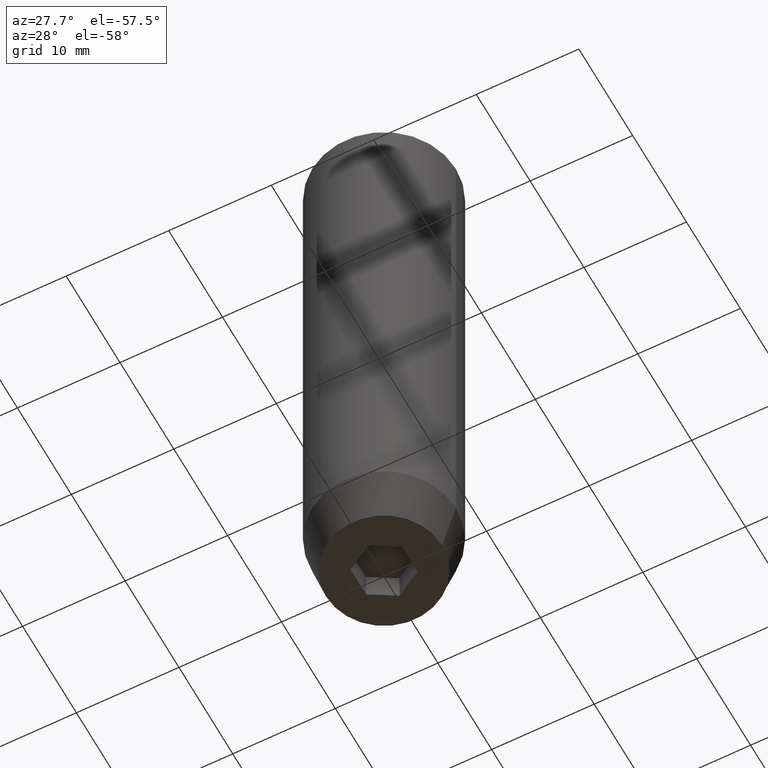
[diagram: clean part render]
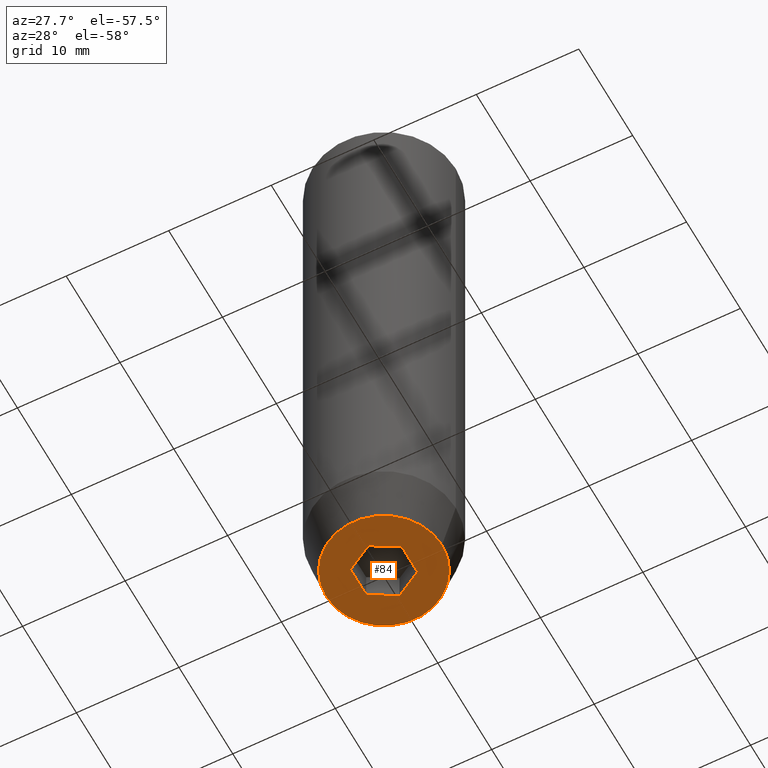
[diagram: same view with one face highlighted and labeled with its STEP entity id]
A machine part, auxiliary view. The second image highlights one B-rep face of the part: STEP entity #84.
In plain terms, the highlighted planar face has unit normal (0, 0, -1).
Its self-contained STEP definition (entity closure, byte-faithful):
#16 = CARTESIAN_POINT ( 'NONE',  ( -1.250000000000000444, 2.165063509461097269, -60.00000000000000000 ) ) ;
#18 = ORIENTED_EDGE ( 'NONE', *, *, #462, .F. ) ;
#19 = LINE ( 'NONE', #371, #494 ) ;
#44 = VERTEX_POINT ( 'NONE', #157 ) ;
#53 = ORIENTED_EDGE ( 'NONE', *, *, #433, .F. ) ;
#68 = CARTESIAN_POINT ( 'NONE',  ( 0.000000000000000000, 0.000000000000000000, -60.00000000000000000 ) ) ;
#75 = LINE ( 'NONE', #528, #442 ) ;
#84 = ADVANCED_FACE ( 'NONE', ( #430, #170 ), #269, .T. ) ;
#100 = VECTOR ( 'NONE', #198, 1000.000000000000000 ) ;
#127 = CARTESIAN_POINT ( 'NONE',  ( 0.000000000000000000, -2.886751345948128211, -60.00000000000000000 ) ) ;
#137 = ORIENTED_EDGE ( 'NONE', *, *, #187, .F. ) ;
#157 = CARTESIAN_POINT ( 'NONE',  ( 2.500000000000000000, -1.443375672974064106, -60.00000000000000000 ) ) ;
#170 = FACE_OUTER_BOUND ( 'NONE', #537, .T. ) ;
#172 = DIRECTION ( 'NONE',  ( -0.000000000000000000, -0.000000000000000000, 1.000000000000000000 ) ) ;
#173 = VERTEX_POINT ( 'NONE', #258 ) ;
#187 = EDGE_CURVE ( 'NONE', #193, #44, #75, .T. ) ;
#193 = VERTEX_POINT ( 'NONE', #222 ) ;
#198 = DIRECTION ( 'NONE',  ( 0.8660254037844385966, 0.5000000000000001110, 0.000000000000000000 ) ) ;
#203 = CARTESIAN_POINT ( 'NONE',  ( -2.500000000000000444, 0.000000000000000000, -60.00000000000000000 ) ) ;
#207 = CARTESIAN_POINT ( 'NONE',  ( -2.500000000000000444, -1.443375672974064328, -60.00000000000000000 ) ) ;
#219 = LINE ( 'NONE', #431, #585 ) ;
#222 = CARTESIAN_POINT ( 'NONE',  ( 2.500000000000000000, 1.443375672974064328, -60.00000000000000000 ) ) ;
#240 = AXIS2_PLACEMENT_3D ( 'NONE', #68, #309, #396 ) ;
#250 = CIRCLE ( 'NONE', #580, 5.660254037844384634 ) ;
#254 = EDGE_CURVE ( 'NONE', #173, #382, #512, .T. ) ;
#258 = CARTESIAN_POINT ( 'NONE',  ( -2.500000000000000444, 1.443375672974064772, -60.00000000000000000 ) ) ;
#259 = LINE ( 'NONE', #203, #504 ) ;
#262 = DIRECTION ( 'NONE',  ( 0.000000000000000000, -1.000000000000000000, 0.000000000000000000 ) ) ;
#269 = PLANE ( 'NONE',  #525 ) ;
#282 = VERTEX_POINT ( 'NONE', #332 ) ;
#289 = EDGE_CURVE ( 'NONE', #44, #548, #19, .T. ) ;
#296 = DIRECTION ( 'NONE',  ( -0.8660254037844387076, -0.5000000000000001110, 0.000000000000000000 ) ) ;
#309 = DIRECTION ( 'NONE',  ( -0.000000000000000000, -0.000000000000000000, 1.000000000000000000 ) ) ;
#320 = ORIENTED_EDGE ( 'NONE', *, *, #415, .F. ) ;
#326 = ORIENTED_EDGE ( 'NONE', *, *, #289, .F. ) ;
#332 = CARTESIAN_POINT ( 'NONE',  ( 5.660254037844384634, 0.000000000000000000, -60.00000000000000000 ) ) ;
#354 = DIRECTION ( 'NONE',  ( 1.000000000000000000, 0.000000000000000000, 0.000000000000000000 ) ) ;
#365 = VERTEX_POINT ( 'NONE', #420 ) ;
#371 = CARTESIAN_POINT ( 'NONE',  ( 1.249999999999999778, -2.165063509461096380, -60.00000000000000000 ) ) ;
#382 = VERTEX_POINT ( 'NONE', #457 ) ;
#396 = DIRECTION ( 'NONE',  ( 1.000000000000000000, 0.000000000000000000, 0.000000000000000000 ) ) ;
#399 = DIRECTION ( 'NONE',  ( -0.8660254037844387076, 0.4999999999999998890, 0.000000000000000000 ) ) ;
#407 = ORIENTED_EDGE ( 'NONE', *, *, #543, .F. ) ;
#410 = EDGE_LOOP ( 'NONE', ( #558, #53, #18, #326, #137, #320 ) ) ;
#415 = EDGE_CURVE ( 'NONE', #382, #193, #524, .T. ) ;
#420 = CARTESIAN_POINT ( 'NONE',  ( -5.660254037844384634, 7.752169791919240742E-16, -60.00000000000000000 ) ) ;
#430 = FACE_BOUND ( 'NONE', #410, .T. ) ;
#431 = CARTESIAN_POINT ( 'NONE',  ( -1.249999999999999556, -2.165063509461096825, -60.00000000000000000 ) ) ;
#433 = EDGE_CURVE ( 'NONE', #455, #173, #259, .T. ) ;
#436 = CARTESIAN_POINT ( 'NONE',  ( 0.000000000000000000, 5.660254037844384634, -60.00000000000000000 ) ) ;
#439 = CARTESIAN_POINT ( 'NONE',  ( 1.250000000000000222, 2.165063509461096825, -60.00000000000000000 ) ) ;
#442 = VECTOR ( 'NONE', #262, 1000.000000000000000 ) ;
#450 = CIRCLE ( 'NONE', #240, 5.660254037844384634 ) ;
#455 = VERTEX_POINT ( 'NONE', #207 ) ;
#457 = CARTESIAN_POINT ( 'NONE',  ( -2.168404344971008868E-16, 2.886751345948129099, -60.00000000000000000 ) ) ;
#462 = EDGE_CURVE ( 'NONE', #548, #455, #219, .T. ) ;
#494 = VECTOR ( 'NONE', #296, 999.9999999999998863 ) ;
#498 = EDGE_CURVE ( 'NONE', #365, #282, #450, .T. ) ;
#504 = VECTOR ( 'NONE', #569, 1000.000000000000000 ) ;
#512 = LINE ( 'NONE', #16, #100 ) ;
#514 = DIRECTION ( 'NONE',  ( -1.000000000000000000, 0.000000000000000000, -0.000000000000000000 ) ) ;
#515 = DIRECTION ( 'NONE',  ( 0.8660254037844385966, -0.5000000000000001110, 0.000000000000000000 ) ) ;
#524 = LINE ( 'NONE', #439, #536 ) ;
#525 = AXIS2_PLACEMENT_3D ( 'NONE', #436, #532, #514 ) ;
#528 = CARTESIAN_POINT ( 'NONE',  ( 2.500000000000000000, 0.000000000000000000, -60.00000000000000000 ) ) ;
#532 = DIRECTION ( 'NONE',  ( 0.000000000000000000, 0.000000000000000000, -1.000000000000000000 ) ) ;
#536 = VECTOR ( 'NONE', #515, 1000.000000000000000 ) ;
#537 = EDGE_LOOP ( 'NONE', ( #407, #579 ) ) ;
#543 = EDGE_CURVE ( 'NONE', #282, #365, #250, .T. ) ;
#548 = VERTEX_POINT ( 'NONE', #127 ) ;
#558 = ORIENTED_EDGE ( 'NONE', *, *, #254, .F. ) ;
#569 = DIRECTION ( 'NONE',  ( 0.000000000000000000, 1.000000000000000000, 0.000000000000000000 ) ) ;
#574 = CARTESIAN_POINT ( 'NONE',  ( 0.000000000000000000, 0.000000000000000000, -60.00000000000000000 ) ) ;
#579 = ORIENTED_EDGE ( 'NONE', *, *, #498, .F. ) ;
#580 = AXIS2_PLACEMENT_3D ( 'NONE', #574, #172, #354 ) ;
#585 = VECTOR ( 'NONE', #399, 1000.000000000000114 ) ;